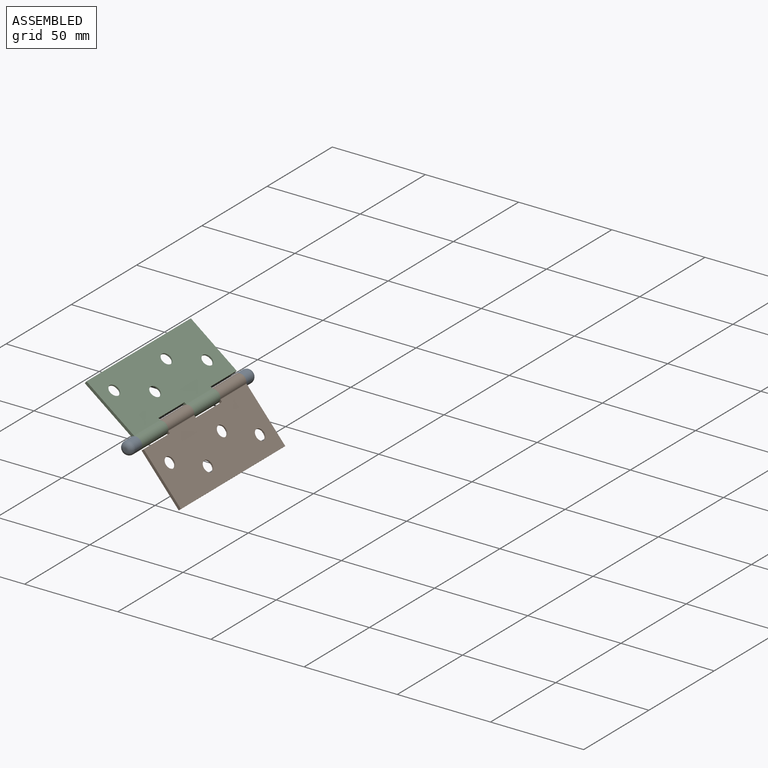
[diagram: assembled view]
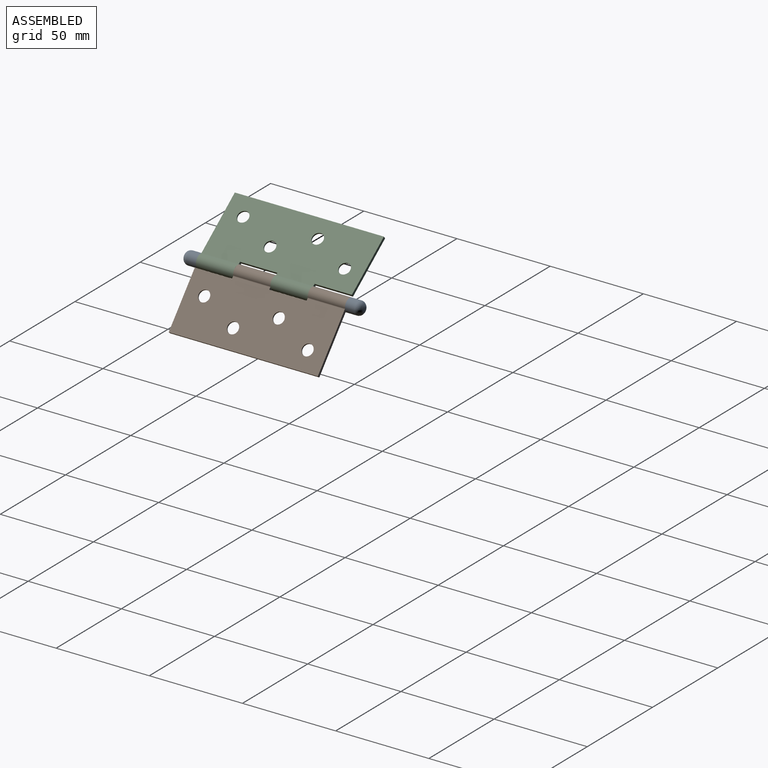
[diagram: assembled view, second angle]
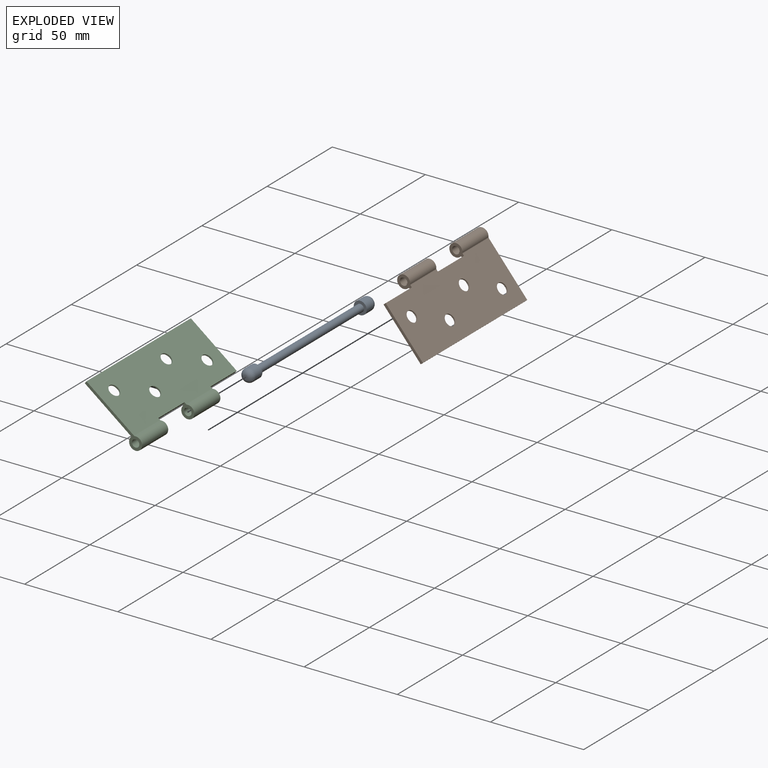
[diagram: exploded view]
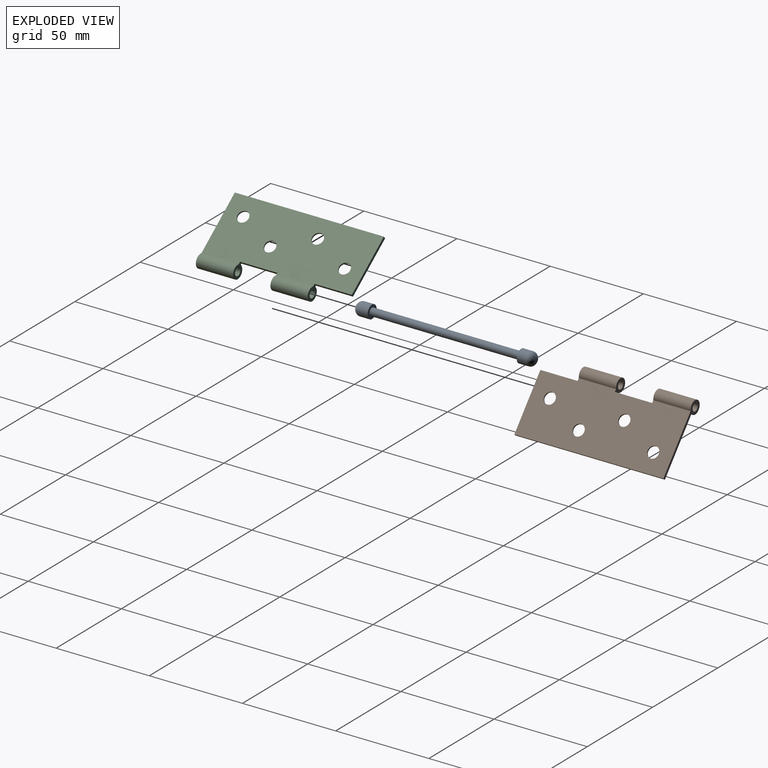
[diagram: exploded view, second angle]
ASSEMBLY  parts=3 mates=2
PART A: 9 faces, bbox 7x96x7 mm
  f0: cylinder r=2mm len=80mm, axis (0,1,0), area 1005.3mm2, adj f3,f6
  f1: cylinder r=3.5mm len=7mm, axis (0,1,0), area 114.4mm2, adj f3,f8
  f2: plane 1.4x1.4mm, normal (0,-1,0), area 1.5mm2, adj f8
  f3: plane 7x7mm, normal (0,1,0), area 25.9mm2, adj f0,f1
  f4: cylinder r=3.5mm len=7mm, axis (0,-1,0), area 114.4mm2, adj f6,f7
  f5: plane 1.4x1.4mm, normal (0,1,0), area 1.5mm2, adj f7
  f6: plane 7x7mm, normal (0,-1,0), area 25.9mm2, adj f0,f4
  f7: torus R=0.7mm, axis (0,1,0), area 68.6mm2, adj f4,f5
  f8: torus R=0.7mm, axis (0,-1,0), area 68.6mm2, adj f1,f2
PART B: 30 faces, bbox 38.5x80x7 mm
  f0: plane 20x0.33mm, normal (0,0,1), area 6.7mm2, adj f3,f4,f5,f24
  f1: plane 20x0.33mm, normal (0,0,1), area 6.7mm2, adj f9,f10,f15,f22
  f2: plane 20x1.5mm, normal (1,0,0), area 30mm2, adj f3,f15,f16,f17
  f3: plane 7.5x7mm, normal (0,-1,0), area 27.4mm2, adj f0,f2,f4,f16,f17,f24,f25,f26
  f4: plane 20x0.52mm, normal (1,0,0), area 10.5mm2, adj f0,f3,f5,f24
  f5: plane 38.5x7mm, normal (0,1,0), area 73.9mm2, adj f0,f4,f6,f16,f17,f24,f25,f26
  f6: plane 80x1.5mm, normal (-1,0,0), area 120mm2, adj f5,f7,f16,f17
  f7: plane 31x1.5mm, normal (0,-1,0), area 46.5mm2, adj f6,f8,f16,f17
  f8: plane 20x1.5mm, normal (1,0,0), area 30mm2, adj f7,f9,f16,f17
  f9: plane 7.5x7mm, normal (0,-1,0), area 27.4mm2, adj f1,f8,f10,f16,f17,f22,f23,f28
  f10: plane 20x0.52mm, normal (1,0,0), area 10.5mm2, adj f1,f9,f15,f22
  f11: cylinder r=3mm len=6mm, axis (0,0,1), area 14.1mm2, adj f16,f18
  f12: cylinder r=3mm len=6mm, axis (0,0,1), area 14.1mm2, adj f16,f20
  f13: cylinder r=3mm len=6mm, axis (0,0,1), area 14.1mm2, adj f16,f19
  f14: cylinder r=3mm len=6mm, axis (0,0,1), area 14.1mm2, adj f16,f21
  f15: plane 7.5x7mm, normal (0,1,0), area 27.4mm2, adj f1,f2,f10,f16,f17,f22,f23,f28
  f16: plane 80x32.14mm, normal (0,0,-1), area 2412.6mm2, adj f2,f3,f5,f6,f7,f8,f9,f11
  f17: plane 80x31.01mm, normal (0,0,1), area 2303.7mm2, adj f2,f3,f5,f6,f7,f8,f9,f15
  f18: cone r=3mm half-angle=45deg, axis (0,0,1), area 22.5mm2, adj f11,f17
  f19: cone r=3mm half-angle=45deg, axis (0,0,1), area 22.5mm2, adj f13,f17
  f20: cone r=3mm half-angle=45deg, axis (0,0,1), area 22.5mm2, adj f12,f17
  f21: cone r=3mm half-angle=45deg, axis (0,0,1), area 22.5mm2, adj f14,f17
  f22: cylinder r=2mm len=20mm, axis (0,-1,0), area 238.9mm2, adj f1,f9,f10,f15
  f23: cylinder r=3.5mm len=20mm, axis (0,-1,0), area 390.8mm2, adj f9,f15,f28,f29
  f24: cylinder r=2mm len=20mm, axis (0,-1,0), area 238.9mm2, adj f0,f3,f4,f5
  f25: cylinder r=3.5mm len=20mm, axis (0,-1,0), area 390.8mm2, adj f3,f5,f26,f27
  f26: cylinder r=0.5mm len=20mm, axis (0,-1,0), area 8mm2, adj f3,f5,f16,f25
  f27: cylinder r=0.5mm len=20mm, axis (0,-1,0), area 16.5mm2, adj f3,f5,f17,f25
  f28: cylinder r=0.5mm len=20mm, axis (0,-1,0), area 8mm2, adj f9,f15,f16,f23
  f29: cylinder r=0.5mm len=20mm, axis (0,-1,0), area 16.5mm2, adj f9,f15,f17,f23
PART C: 30 faces, bbox 38.5x80x7 mm
  f0: plane 20x0.52mm, normal (-1,0,0), area 10.5mm2, adj f1,f8,f9,f25
  f1: plane 20x0.33mm, normal (0,0,1), area 6.7mm2, adj f0,f8,f9,f25
  f2: plane 20x0.52mm, normal (-1,0,0), area 10.5mm2, adj f3,f4,f11,f23
  f3: plane 20x0.33mm, normal (0,0,1), area 6.7mm2, adj f2,f4,f11,f23
  f4: plane 38.5x7mm, normal (0,-1,0), area 73.9mm2, adj f2,f3,f5,f16,f17,f22,f23,f28
  f5: plane 80x1.5mm, normal (1,0,0), area 120mm2, adj f4,f6,f16,f17
  f6: plane 31x1.5mm, normal (0,1,0), area 46.5mm2, adj f5,f7,f16,f17
  f7: plane 20x1.5mm, normal (-1,0,0), area 30mm2, adj f6,f8,f16,f17
  f8: plane 7.5x7mm, normal (0,1,0), area 27.4mm2, adj f0,f1,f7,f16,f17,f24,f25,f26
  f9: plane 7.5x7mm, normal (0,-1,0), area 27.4mm2, adj f0,f1,f10,f16,f17,f24,f25,f26
  f10: plane 20x1.5mm, normal (-1,0,0), area 30mm2, adj f9,f11,f16,f17
  f11: plane 7.5x7mm, normal (0,1,0), area 27.4mm2, adj f2,f3,f10,f16,f17,f22,f23,f28
  f12: cylinder r=3mm len=6mm, axis (0,0,1), area 14.1mm2, adj f16,f21
  f13: cylinder r=3mm len=6mm, axis (0,0,1), area 14.1mm2, adj f16,f19
  f14: cylinder r=3mm len=6mm, axis (0,0,1), area 14.1mm2, adj f16,f20
  f15: cylinder r=3mm len=6mm, axis (0,0,1), area 14.1mm2, adj f16,f18
  f16: plane 80x32.14mm, normal (0,0,-1), area 2412.6mm2, adj f4,f5,f6,f7,f8,f9,f10,f11
  f17: plane 80x31.01mm, normal (0,0,1), area 2303.7mm2, adj f4,f5,f6,f7,f8,f9,f10,f11
  f18: cone r=3.75mm half-angle=45deg, axis (0,0,1), area 22.5mm2, adj f15,f17
  f19: cone r=3.75mm half-angle=45deg, axis (0,0,1), area 22.5mm2, adj f13,f17
  f20: cone r=3.75mm half-angle=45deg, axis (0,0,1), area 22.5mm2, adj f14,f17
  f21: cone r=3.75mm half-angle=45deg, axis (0,0,1), area 22.5mm2, adj f12,f17
  f22: cylinder r=3.5mm len=20mm, axis (0,-1,0), area 390.8mm2, adj f4,f11,f28,f29
  f23: cylinder r=2mm len=20mm, axis (0,-1,0), area 238.9mm2, adj f2,f3,f4,f11
  f24: cylinder r=3.5mm len=20mm, axis (0,-1,0), area 390.8mm2, adj f8,f9,f26,f27
  f25: cylinder r=2mm len=20mm, axis (0,-1,0), area 238.9mm2, adj f0,f1,f8,f9
  f26: cylinder r=0.5mm len=20mm, axis (0,-1,0), area 8mm2, adj f8,f9,f16,f24
  f27: cylinder r=0.5mm len=20mm, axis (0,-1,0), area 16.5mm2, adj f8,f9,f17,f24
  f28: cylinder r=0.5mm len=20mm, axis (0,-1,0), area 8mm2, adj f4,f11,f16,f22
  f29: cylinder r=0.5mm len=20mm, axis (0,-1,0), area 16.5mm2, adj f4,f11,f17,f22
PLACE A t=(-41.68,-36.79,-19.09)mm fixed
PLACE B rot(axis=(0,-1,0),130.1deg) t=(-41.68,-36.79,-19.09)mm
PLACE C rot(axis=(0,-1,0),142.5deg) t=(-41.68,-36.79,-19.09)mm
MATE revolute C.f25 <-> B.f22  axis (0,-1,0) through (-41.68,-36.79,-19.09)mm
MATE revolute C.f24 <-> A.f0  axis (0,-1,0) through (-41.68,-36.79,-19.09)mm
